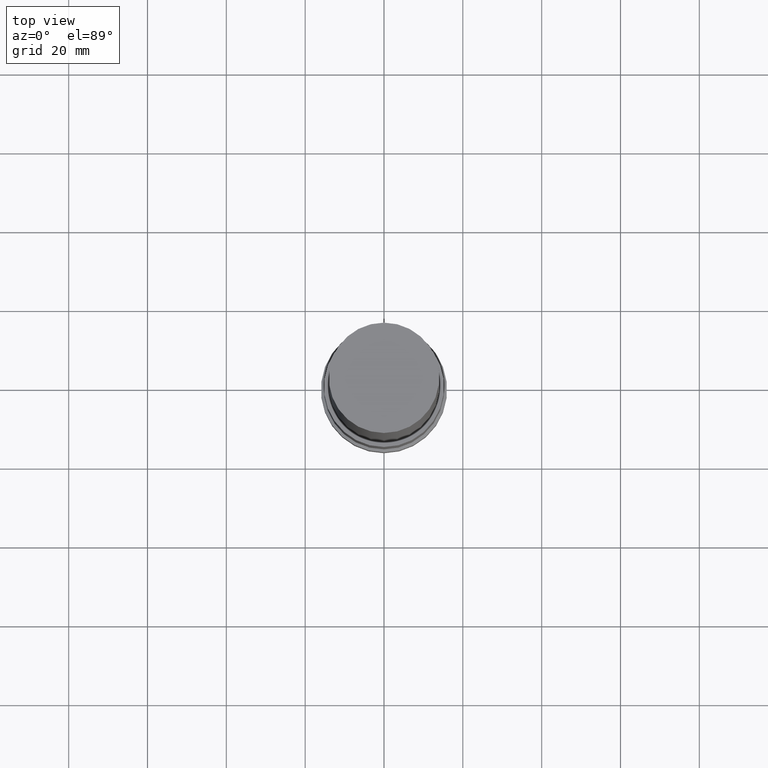
[diagram: clean part render]
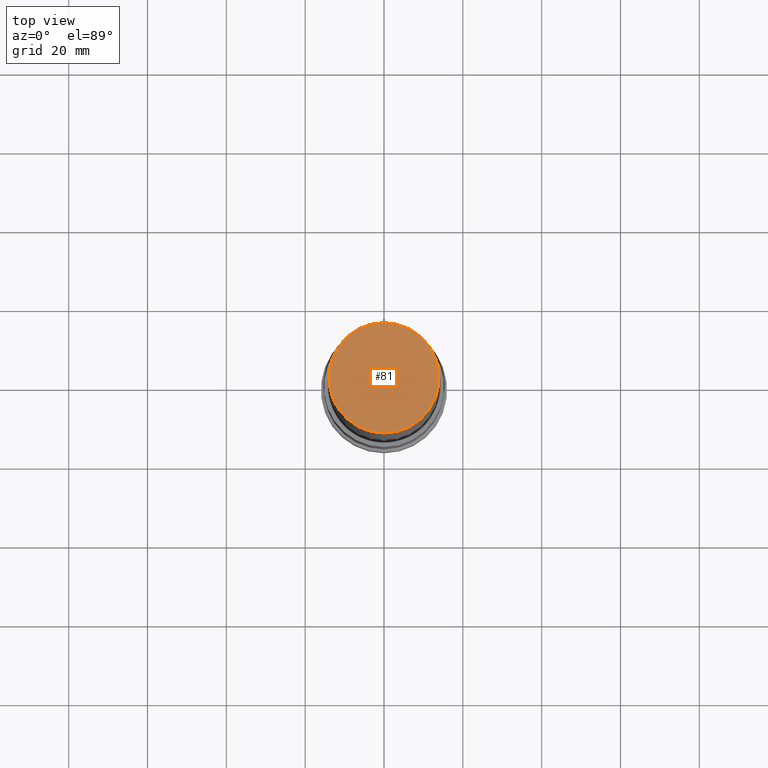
[diagram: same view with one face highlighted and labeled with its STEP entity id]
A machine part, top view. The second image highlights one B-rep face of the part: STEP entity #81.
In plain terms, the highlighted planar face has unit normal (-0, 0, 1).
Its self-contained STEP definition (entity closure, byte-faithful):
#81=ADVANCED_FACE('',(#100),#101,.T.);
#100=FACE_OUTER_BOUND('',#119,.T.);
#101=PLANE('',#120);
#119=EDGE_LOOP('',(#150));
#120=AXIS2_PLACEMENT_3D('',#151,#152,#153);
#150=ORIENTED_EDGE('',*,*,#159,.T.);
#151=CARTESIAN_POINT('',(-1.10218211923262E-014,6.9999999999999,180.0));
#152=DIRECTION('',(-6.12323399573677E-017,8.91821034370993E-016,1.0));
#153=DIRECTION('',(4.97811360269669E-032,1.0,-8.91821034370993E-016));
#159=EDGE_CURVE('',#170,#170,#171,.T.);
#170=VERTEX_POINT('',#182);
#171=CIRCLE('',#183,13.9999999999998);
#182=CARTESIAN_POINT('',(-1.10218211923262E-014,13.9999999999998,180.0));
#183=AXIS2_PLACEMENT_3D('',#199,#200,#201);
#199=CARTESIAN_POINT('',(-1.10218211923262E-014,-1.30050278991734E-017,180.0));
#200=DIRECTION('',(-6.12323399573677E-017,-7.22501549961324E-020,1.0));
#201=DIRECTION('',(-4.83157677682004E-033,1.0,7.22501549961324E-020));